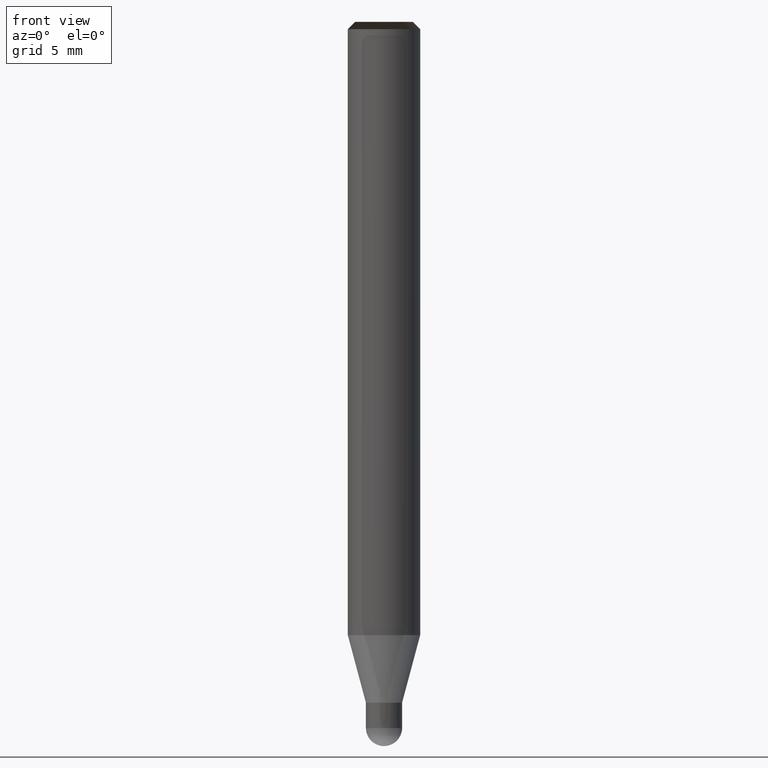
[diagram: clean part render]
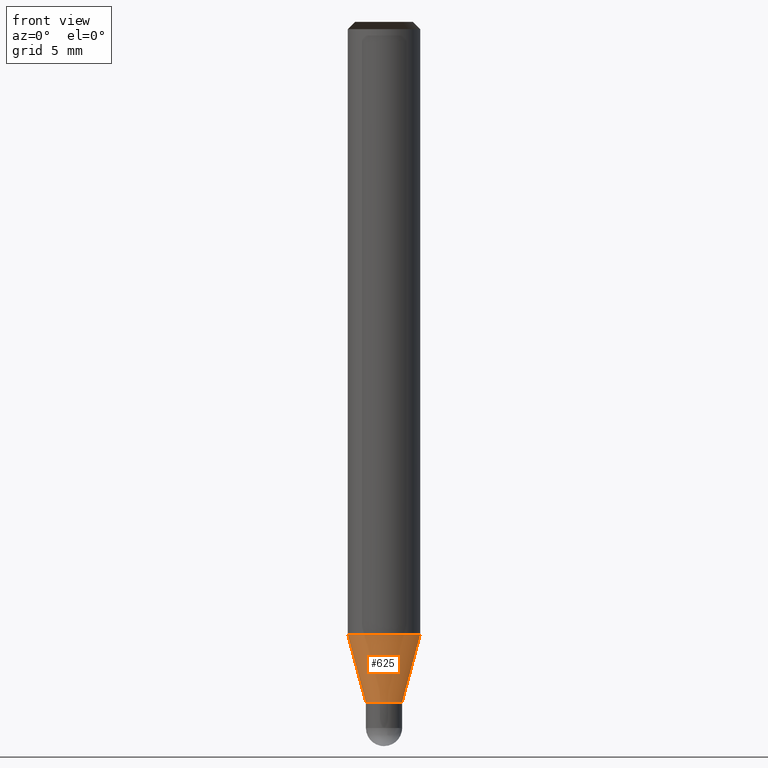
[diagram: same view with one face highlighted and labeled with its STEP entity id]
A machine part, front view. The second image highlights one B-rep face of the part: STEP entity #625.
In plain terms, the highlighted face is a freeform B-spline surface patch.
Its self-contained STEP definition (entity closure, byte-faithful):
#343=CARTESIAN_POINT('',(1.0,0.0,-3.732050807569));
#347=CARTESIAN_POINT('',(-1.0,0.0,-3.732050807569));
#355=CARTESIAN_POINT('',(-1.0,-1.0,-3.732050807569));
#356=CARTESIAN_POINT('',(0.0,-1.0,-3.732050807569));
#357=CARTESIAN_POINT('',(1.0,-1.0,-3.732050807569));
#358=CARTESIAN_POINT('',(2.0,0.0,0.0));
#362=CARTESIAN_POINT('',(-2.0,0.0,0.0));
#374=CARTESIAN_POINT('',(-2.0,-2.0,0.0));
#375=CARTESIAN_POINT('',(0.0,-2.0,0.0));
#376=CARTESIAN_POINT('',(2.0,-2.0,0.0));
#606=(
BOUNDED_SURFACE()
B_SPLINE_SURFACE(1,2,(
(#347,#355,#356,#357,#343),
(#362,#374,#375,#376,#358)
), .UNSPECIFIED.,.F.,.F.,.F.)
B_SPLINE_SURFACE_WITH_KNOTS((2,2),(3,2,3),(
0.0,1.0),(
0.0,0.5,1.0), .UNSPECIFIED.)
GEOMETRIC_REPRESENTATION_ITEM()
RATIONAL_B_SPLINE_SURFACE(((1.0,0.707106781187,1.0,0.707106781187,1.0),
(1.0,0.707106781187,1.0,0.707106781187,1.0)
))
REPRESENTATION_ITEM('')
SURFACE()
);
#607=(
BOUNDED_CURVE()
B_SPLINE_CURVE(1,(#362,#347),.UNSPECIFIED.,.F.,.F.)
B_SPLINE_CURVE_WITH_KNOTS((2,2),
(0.0,1.0),.UNSPECIFIED.)
CURVE()
GEOMETRIC_REPRESENTATION_ITEM()
RATIONAL_B_SPLINE_CURVE((1.0,1.0))
REPRESENTATION_ITEM('')
);
#608=(
BOUNDED_CURVE()
B_SPLINE_CURVE(2,(#347,#355,#356,#357,#343),.UNSPECIFIED.,.F.,.F.)
B_SPLINE_CURVE_WITH_KNOTS((3,2,3),
(0.0,0.5,1.0),.UNSPECIFIED.)
CURVE()
GEOMETRIC_REPRESENTATION_ITEM()
RATIONAL_B_SPLINE_CURVE((1.0,0.707106781187,1.0,0.707106781187,1.0))
REPRESENTATION_ITEM('')
);
#609=(
BOUNDED_CURVE()
B_SPLINE_CURVE(1,(#343,#358),.UNSPECIFIED.,.F.,.F.)
B_SPLINE_CURVE_WITH_KNOTS((2,2),
(0.0,1.0),.UNSPECIFIED.)
CURVE()
GEOMETRIC_REPRESENTATION_ITEM()
RATIONAL_B_SPLINE_CURVE((1.0,1.0))
REPRESENTATION_ITEM('')
);
#610=(
BOUNDED_CURVE()
B_SPLINE_CURVE(2,(#358,#376,#375,#374,#362),.UNSPECIFIED.,.F.,.F.)
B_SPLINE_CURVE_WITH_KNOTS((3,2,3),
(0.0,0.5,1.0),.UNSPECIFIED.)
CURVE()
GEOMETRIC_REPRESENTATION_ITEM()
RATIONAL_B_SPLINE_CURVE((1.0,0.707106781187,1.0,0.707106781187,1.0))
REPRESENTATION_ITEM('')
);
#611=VERTEX_POINT('',#343);
#612=VERTEX_POINT('',#347);
#613=VERTEX_POINT('',#358);
#614=VERTEX_POINT('',#362);
#615=EDGE_CURVE('',#614,#612,#607,.T.);
#616=EDGE_CURVE('',#612,#611,#608,.T.);
#617=EDGE_CURVE('',#611,#613,#609,.T.);
#618=EDGE_CURVE('',#613,#614,#610,.T.);
#619=ORIENTED_EDGE('',*,*,#615,.T.);
#620=ORIENTED_EDGE('',*,*,#616,.T.);
#621=ORIENTED_EDGE('',*,*,#617,.T.);
#622=ORIENTED_EDGE('',*,*,#618,.T.);
#623=EDGE_LOOP('',(#619,#620,#621,#622));
#624=FACE_OUTER_BOUND('',#623,.T.);
#625=ADVANCED_FACE('',(#624),#606,.T.);